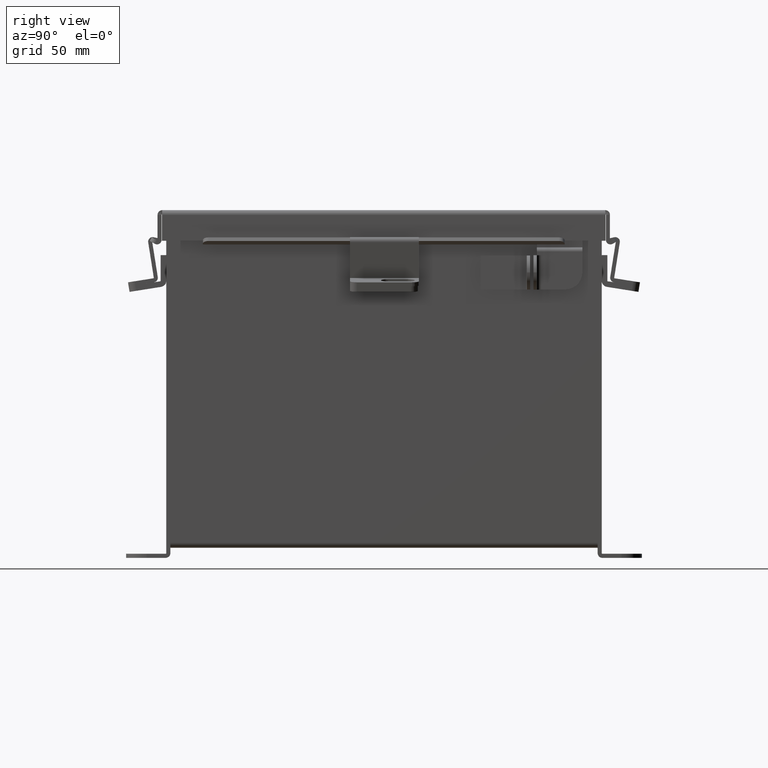
[diagram: clean part render]
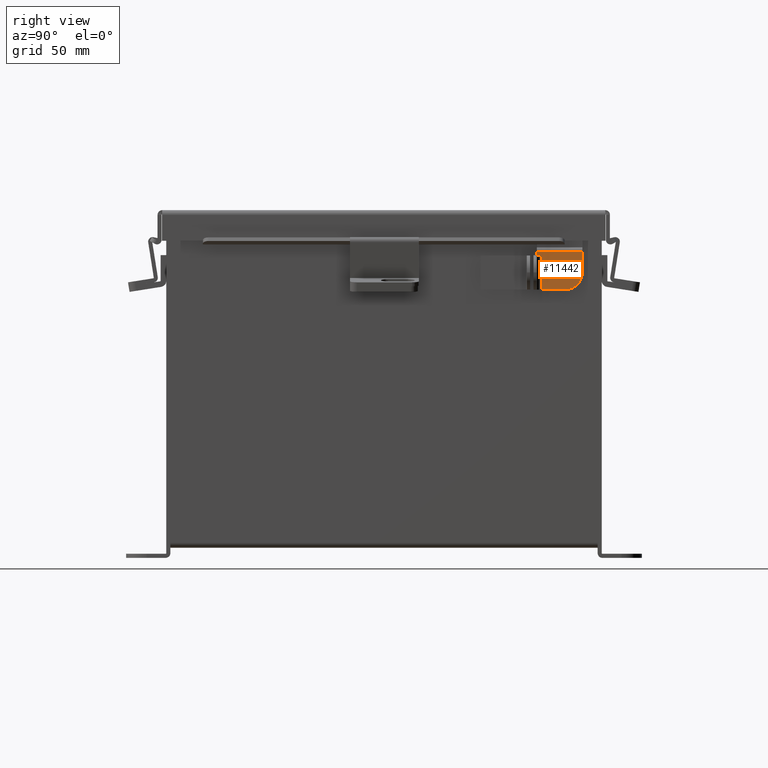
[diagram: same view with one face highlighted and labeled with its STEP entity id]
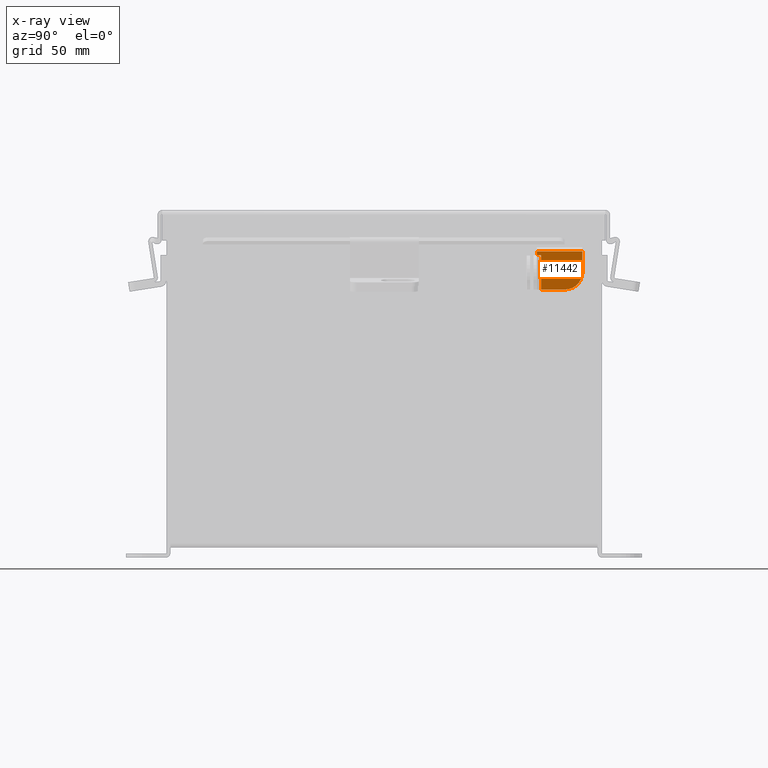
[diagram: x-ray of the same camera — body ghosted, the highlighted face saturated]
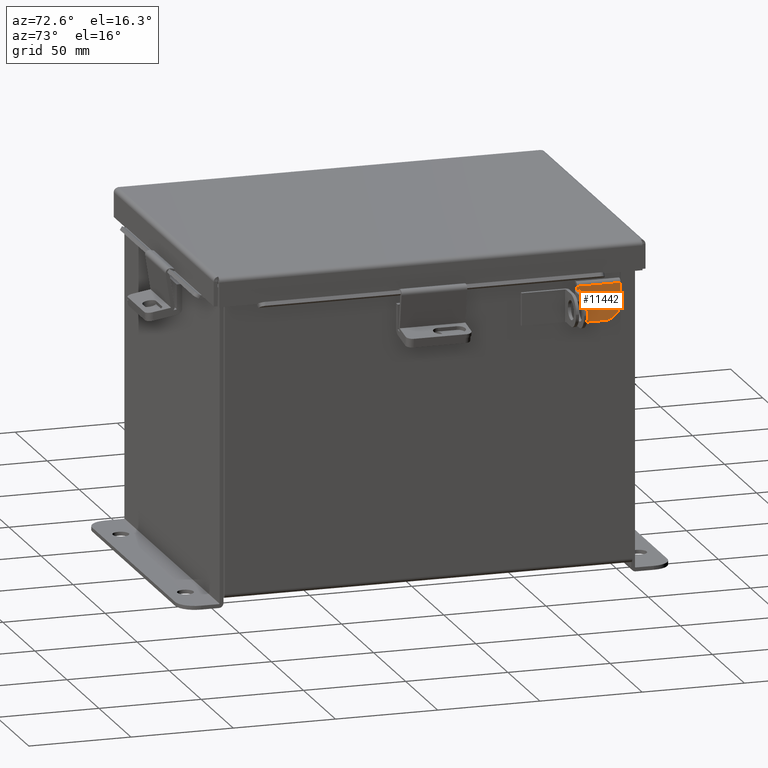
[diagram: same view with one face highlighted and labeled with its STEP entity id]
A machine part, right view. The second image highlights one B-rep face of the part: STEP entity #11442.
The next image is the same camera in x-ray: the body ghosted, the highlighted face saturated — about 0% of this face is hidden behind the body in this view.
A second angle (auxiliary view) of the same face is appended — the face is thin or edge-on in the first view.
In plain terms, the highlighted planar face has unit normal (1, -0, 0).
Its self-contained STEP definition (entity closure, byte-faithful):
#34 = PLANE ( 'NONE',  #10945 ) ;
#104 = LINE ( 'NONE', #6702, #6396 ) ;
#153 = CARTESIAN_POINT ( 'NONE',  ( 4.917326388595674200E-015, 0.0000000000000000000, 2.821464258401247300 ) ) ;
#711 = CARTESIAN_POINT ( 'NONE',  ( 0.8370000000000047400, -4.917326388595674200E-015, 2.751442129839069700 ) ) ;
#847 = CARTESIAN_POINT ( 'NONE',  ( 0.08000000000000460900, 0.0000000000000000000, 3.451464258401247200 ) ) ;
#1235 = DIRECTION ( 'NONE',  ( 1.856288317598186100E-029, -6.310887241768069200E-030, 1.000000000000000000 ) ) ;
#1268 = VECTOR ( 'NONE', #2139, 39.37007874015748100 ) ;
#1316 = ORIENTED_EDGE ( 'NONE', *, *, #11895, .F. ) ;
#1382 = LINE ( 'NONE', #9487, #10458 ) ;
#1458 = LINE ( 'NONE', #8575, #10914 ) ;
#1473 = DIRECTION ( 'NONE',  ( -1.856288317598186100E-029, 6.310887241768069200E-030, -1.000000000000000000 ) ) ;
#2134 = ORIENTED_EDGE ( 'NONE', *, *, #3365, .T. ) ;
#2139 = DIRECTION ( 'NONE',  ( -1.000000000000000000, 2.134256245050261700E-016, 6.829619984160688200E-015 ) ) ;
#2194 = CARTESIAN_POINT ( 'NONE',  ( 0.08000000000000460900, 0.0000000000000000000, 2.821464258401245900 ) ) ;
#2464 = ORIENTED_EDGE ( 'NONE', *, *, #4927, .T. ) ;
#2523 = CARTESIAN_POINT ( 'NONE',  ( 0.5220000000000050200, 0.0000000000000000000, 3.451464258401247200 ) ) ;
#2589 = CARTESIAN_POINT ( 'NONE',  ( 0.5220000000000050200, -4.917326388595674200E-015, 3.136464258401247700 ) ) ;
#2745 = EDGE_CURVE ( 'NONE', #14789, #9747, #104, .T. ) ;
#3269 = VERTEX_POINT ( 'NONE', #2194 ) ;
#3322 = EDGE_LOOP ( 'NONE', ( #14310, #13848, #2134, #2464, #10708, #1316, #6868 ) ) ;
#3365 = EDGE_CURVE ( 'NONE', #14097, #11828, #1382, .T. ) ;
#3385 = VERTEX_POINT ( 'NONE', #3578 ) ;
#3578 = CARTESIAN_POINT ( 'NONE',  ( 4.917326388595674200E-015, 0.0000000000000000000, 2.751442129839069700 ) ) ;
#3707 = AXIS2_PLACEMENT_3D ( 'NONE', #2589, #10888, #3773 ) ;
#3773 = DIRECTION ( 'NONE',  ( 0.0000000000000000000, -6.162205546345833600E-030, 1.000000000000000000 ) ) ;
#3890 = VECTOR ( 'NONE', #13310, 39.37007874015748100 ) ;
#4927 = EDGE_CURVE ( 'NONE', #11828, #3385, #13223, .T. ) ;
#6396 = VECTOR ( 'NONE', #15019, 39.37007874015748100 ) ;
#6702 = CARTESIAN_POINT ( 'NONE',  ( 0.8370000000000047400, 0.0000000000000000000, 3.451464258401247200 ) ) ;
#6868 = ORIENTED_EDGE ( 'NONE', *, *, #10057, .F. ) ;
#7310 = VERTEX_POINT ( 'NONE', #153 ) ;
#8312 = DIRECTION ( 'NONE',  ( -3.912378258225035500E-030, 1.000000000000000000, 6.310887241768069200E-030 ) ) ;
#8575 = CARTESIAN_POINT ( 'NONE',  ( 4.917326388595674200E-015, 0.0000000000000000000, 3.451464258401247200 ) ) ;
#9433 = DIRECTION ( 'NONE',  ( -1.856288317598186100E-029, 6.310887241768069200E-030, -1.000000000000000000 ) ) ;
#9487 = CARTESIAN_POINT ( 'NONE',  ( 0.8370000000000047400, 0.0000000000000000000, 3.451464258401247200 ) ) ;
#9626 = CARTESIAN_POINT ( 'NONE',  ( 0.8370000000000047400, -4.917326388595674200E-015, 3.136464258401247700 ) ) ;
#9747 = VERTEX_POINT ( 'NONE', #847 ) ;
#10036 = VECTOR ( 'NONE', #13785, 39.37007874015748100 ) ;
#10057 = EDGE_CURVE ( 'NONE', #9747, #3269, #13393, .T. ) ;
#10349 = LINE ( 'NONE', #10431, #1268 ) ;
#10431 = CARTESIAN_POINT ( 'NONE',  ( 0.08000000000000460900, 0.0000000000000000000, 2.821464258401246800 ) ) ;
#10458 = VECTOR ( 'NONE', #9433, 39.37007874015748100 ) ;
#10653 = CARTESIAN_POINT ( 'NONE',  ( 0.8370000000000047400, 0.0000000000000000000, 3.451464258401247200 ) ) ;
#10708 = ORIENTED_EDGE ( 'NONE', *, *, #11593, .F. ) ;
#10888 = DIRECTION ( 'NONE',  ( -3.912378258225035500E-030, 1.000000000000000000, 6.310887241768069200E-030 ) ) ;
#10891 = CARTESIAN_POINT ( 'NONE',  ( 0.08000000000000460900, 0.0000000000000000000, 3.451464258401247200 ) ) ;
#10914 = VECTOR ( 'NONE', #1473, 39.37007874015748100 ) ;
#10945 = AXIS2_PLACEMENT_3D ( 'NONE', #10653, #8312, #1235 ) ;
#11442 = ADVANCED_FACE ( 'NONE', ( #15197 ), #34, .T. ) ;
#11593 = EDGE_CURVE ( 'NONE', #7310, #3385, #1458, .T. ) ;
#11828 = VERTEX_POINT ( 'NONE', #15074 ) ;
#11895 = EDGE_CURVE ( 'NONE', #3269, #7310, #10349, .T. ) ;
#11928 = CIRCLE ( 'NONE', #3707, 0.3150000000000014500 ) ;
#13223 = LINE ( 'NONE', #711, #10036 ) ;
#13310 = DIRECTION ( 'NONE',  ( -1.856288317598186100E-029, 6.310887241768069200E-030, -1.000000000000000000 ) ) ;
#13393 = LINE ( 'NONE', #10891, #3890 ) ;
#13785 = DIRECTION ( 'NONE',  ( -1.000000000000000000, 4.010985871377842000E-030, -1.863683888584640400E-029 ) ) ;
#13848 = ORIENTED_EDGE ( 'NONE', *, *, #15182, .T. ) ;
#14097 = VERTEX_POINT ( 'NONE', #9626 ) ;
#14310 = ORIENTED_EDGE ( 'NONE', *, *, #2745, .F. ) ;
#14789 = VERTEX_POINT ( 'NONE', #2523 ) ;
#15019 = DIRECTION ( 'NONE',  ( -1.000000000000000000, 4.010985871377842000E-030, -1.863683888584640400E-029 ) ) ;
#15074 = CARTESIAN_POINT ( 'NONE',  ( 0.8370000000000047400, -4.917326388595674200E-015, 2.751442129839069700 ) ) ;
#15182 = EDGE_CURVE ( 'NONE', #14789, #14097, #11928, .T. ) ;
#15197 = FACE_OUTER_BOUND ( 'NONE', #3322, .T. ) ;